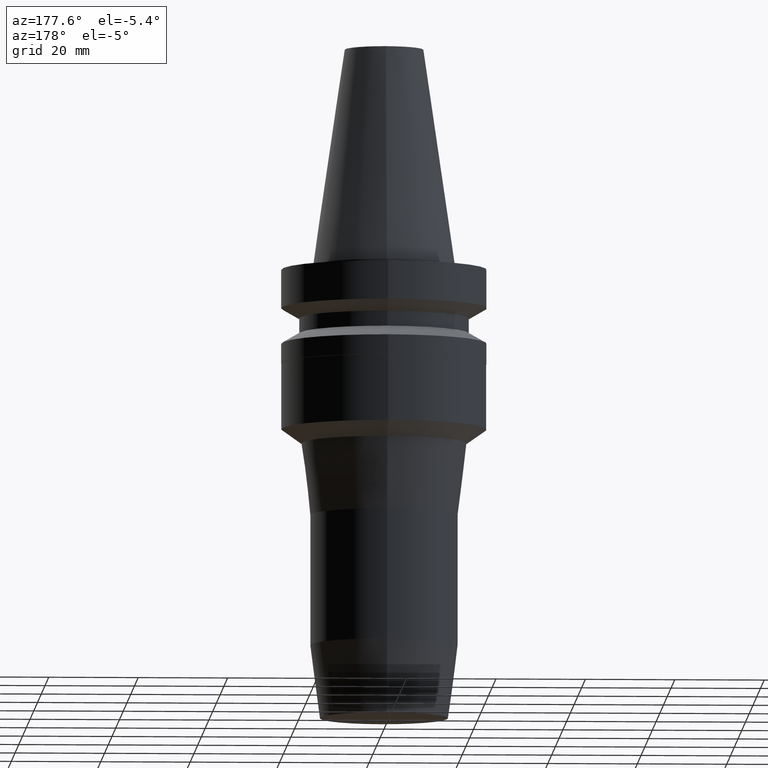
[diagram: clean part render]
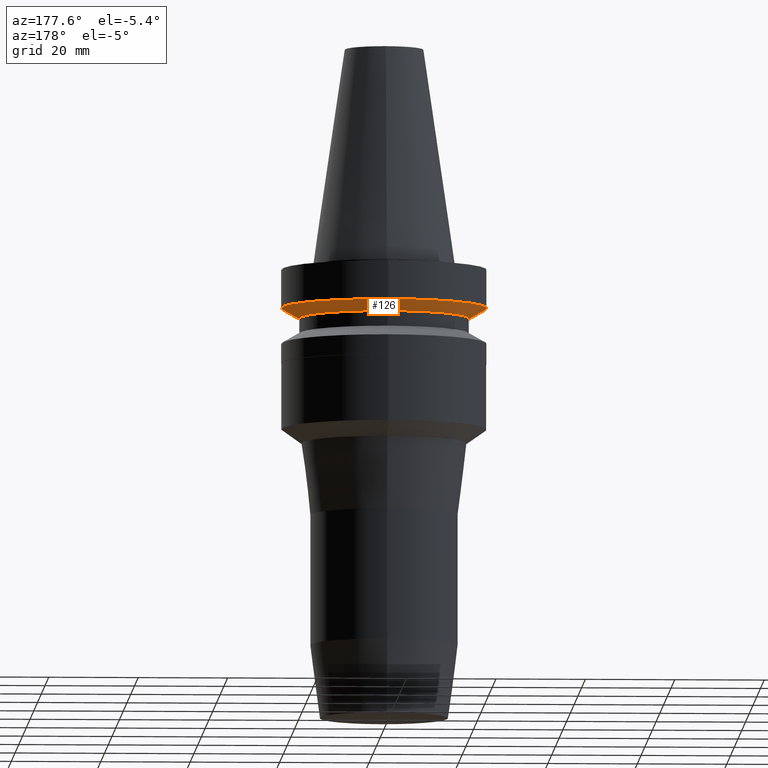
[diagram: same view with one face highlighted and labeled with its STEP entity id]
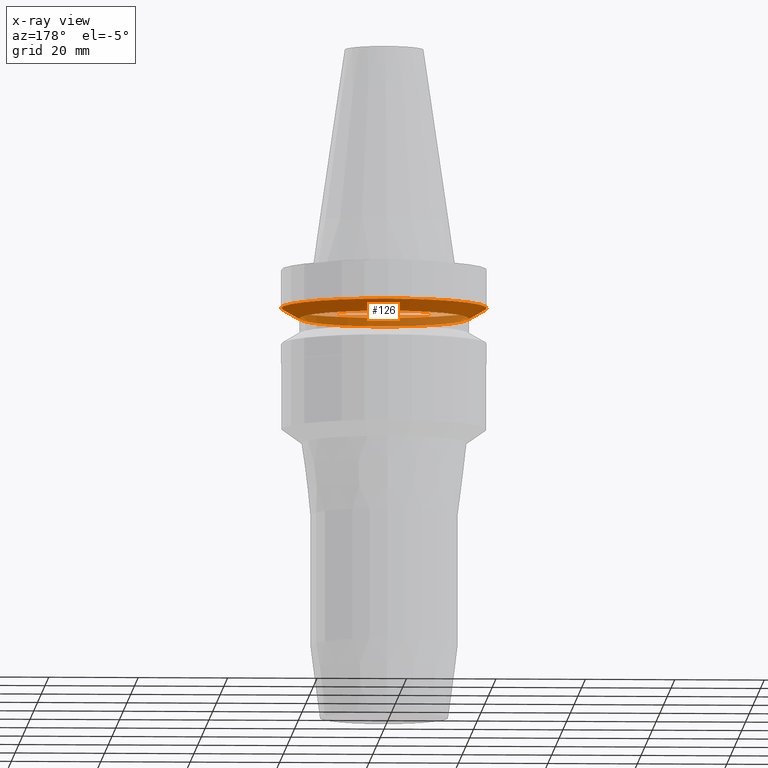
[diagram: x-ray of the same camera — body ghosted, the highlighted face saturated]
A machine part, auxiliary view. The second image highlights one B-rep face of the part: STEP entity #126.
The next image is the same camera in x-ray: the body ghosted, the highlighted face saturated — about 34% of this face is hidden behind the body in this view.
In plain terms, the highlighted conical surface has half-angle 60 deg.
Its self-contained STEP definition (entity closure, byte-faithful):
#82=EDGE_CURVE('Unnamed[1]',#193,#193,#194,.T.);
#87=EDGE_CURVE('Unnamed[1]',#201,#201,#202,.T.);
#126=ADVANCED_FACE('Unnamed[1]',(#260,#261),#262,.T.);
#193=VERTEX_POINT('',#337);
#194=CIRCLE('',#338,23.0);
#201=VERTEX_POINT('',#347);
#202=CIRCLE('',#348,19.0);
#260=FACE_BOUND('',#420,.T.);
#261=FACE_BOUND('',#421,.T.);
#262=CONICAL_SURFACE('',#422,21.0,1.04719755058881);
#337=CARTESIAN_POINT('',(5.87830463590729E-016,23.0,-9.59999999999999));
#338=AXIS2_PLACEMENT_3D('',#486,#487,#488);
#347=CARTESIAN_POINT('',(7.29240495619202E-016,19.0,-11.90940108));
#348=AXIS2_PLACEMENT_3D('',#495,#496,#497);
#420=EDGE_LOOP('',(#559));
#421=EDGE_LOOP('',(#560));
#422=AXIS2_PLACEMENT_3D('',#561,#562,#563);
#486=CARTESIAN_POINT('',(5.87830463590729E-016,1.17566092718146E-015,-9.59999999999999));
#487=DIRECTION('',(6.12323399573677E-017,1.22464679914735E-016,-1.0));
#488=DIRECTION('',(-1.23259516440783E-032,1.0,1.22464679914735E-016));
#495=CARTESIAN_POINT('',(7.29240495619202E-016,1.4584809912384E-015,-11.90940108));
#496=DIRECTION('',(6.12323399573677E-017,1.22464679914735E-016,-1.0));
#497=DIRECTION('',(-1.23259516440783E-032,1.0,1.22464679914735E-016));
#559=ORIENTED_EDGE('',*,*,#87,.F.);
#560=ORIENTED_EDGE('',*,*,#82,.T.);
#561=CARTESIAN_POINT('',(6.58535479604966E-016,1.31707095920993E-015,-10.75470054));
#562=DIRECTION('',(-6.12323399573677E-017,-1.22464679914735E-016,1.0));
#563=DIRECTION('',(-1.23259516440783E-032,1.0,1.22464679914735E-016));